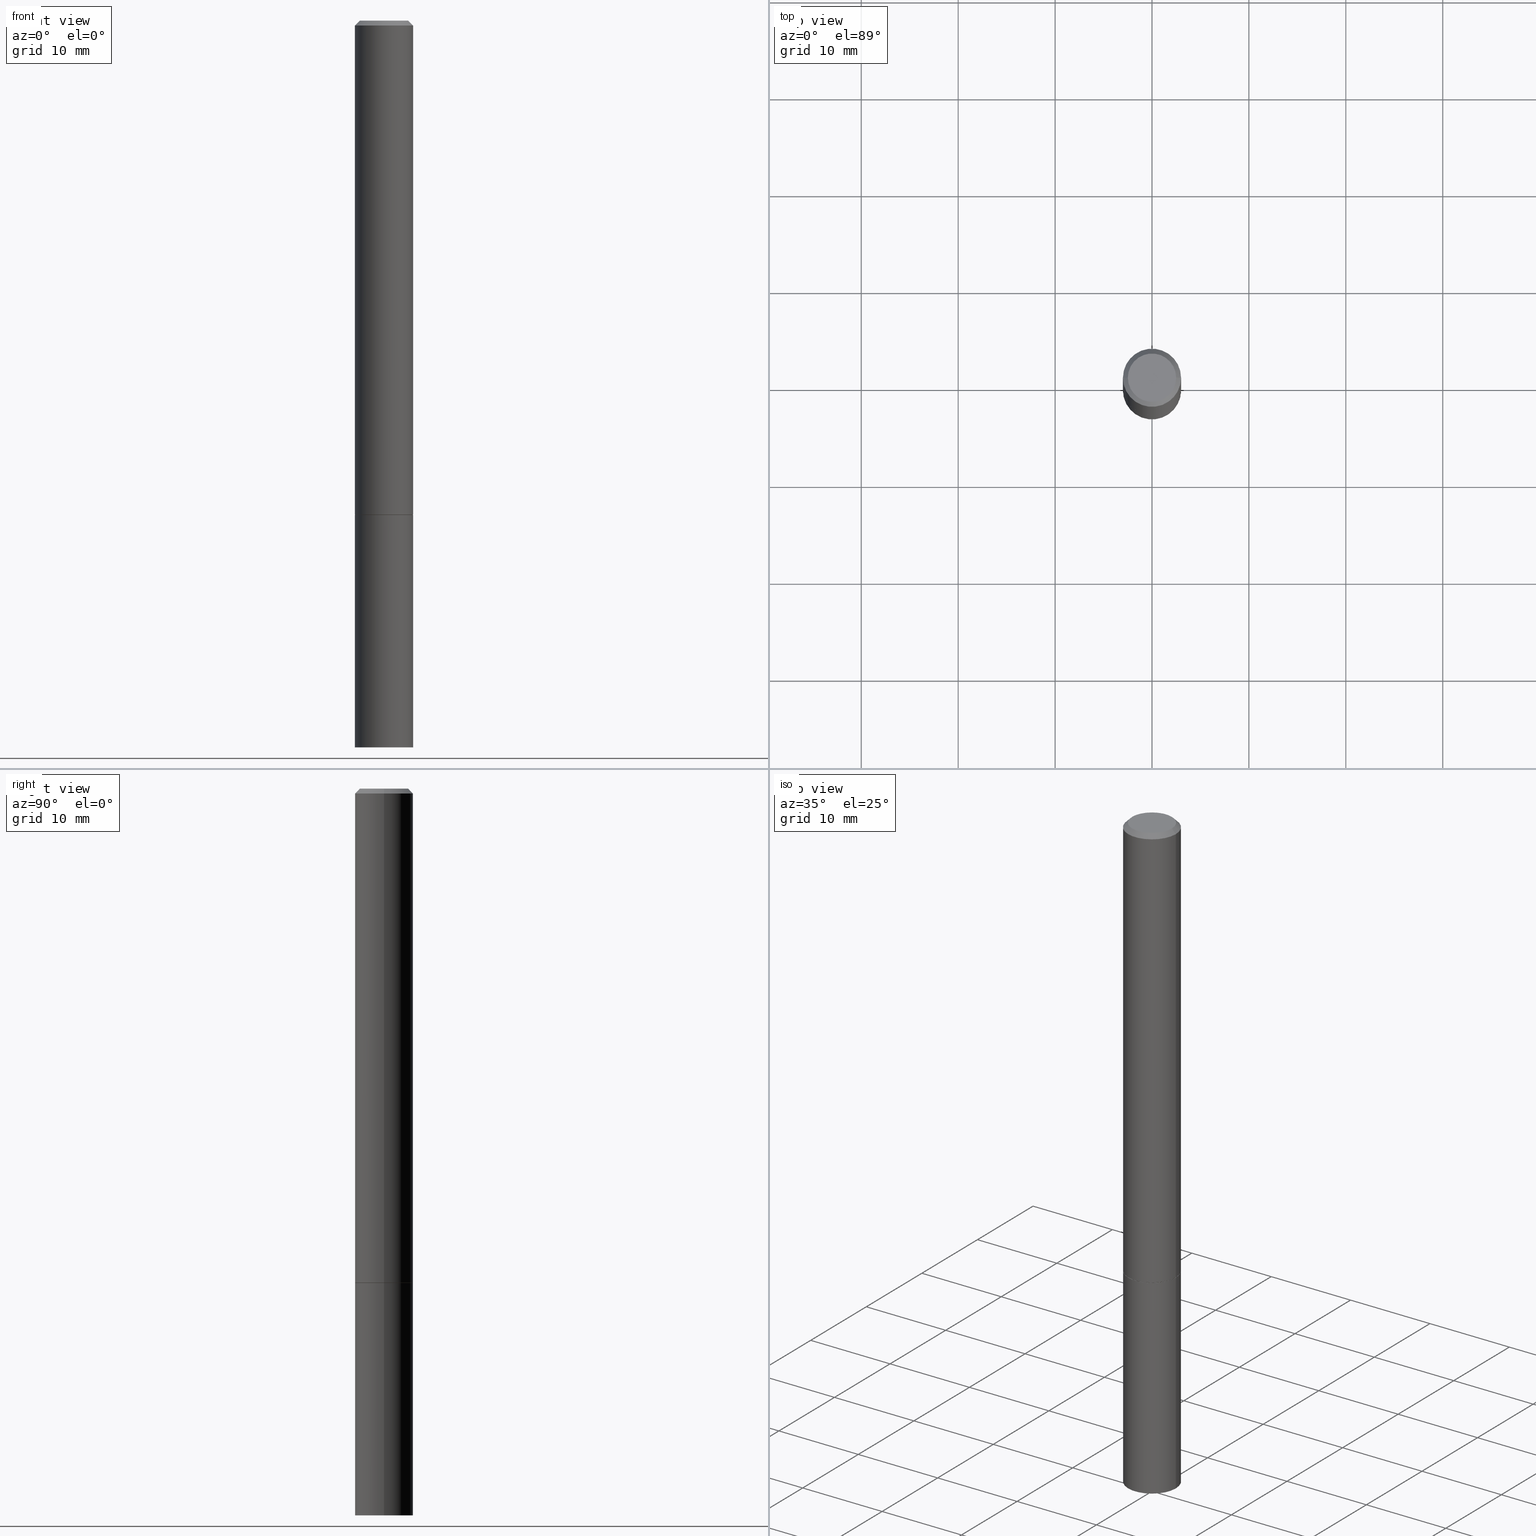
[diagram: canonical four-view strip — front | top / right | iso, engineering-drawing reading convention]
A machine part, canonical four-view strip (front | top / right | iso — engineering-drawing reading convention). The complete STEP part file that produces these views, byte-faithful:
ISO-10303-21;
HEADER;
FILE_DESCRIPTION (( 'STEP AP203' ),
    '1' );
FILE_NAME ('74332.STEP',
    '2024-02-29T08:38:22',
    ( '' ),
    ( '' ),
    'SwSTEP 2.0',
    'SolidWorks 2023',
    '' );
FILE_SCHEMA (( 'CONFIG_CONTROL_DESIGN' ));
ENDSEC;

DATA;
#1 = APPROVAL ( #225, 'UNSPECIFIED' ) ;
#2 = ORIENTED_EDGE ( 'NONE', *, *, #155, .T. ) ;
#3 = DIRECTION ( 'NONE',  ( -1.000000000000000000, 6.982962677686265922E-15, -4.876176775795935793E-29 ) ) ;
#4 = CARTESIAN_POINT ( 'NONE',  ( 6.850286386810212718E-16, 0.09809999999999979847, -3.467828318306122952E-16 ) ) ;
#5 = EDGE_LOOP ( 'NONE', ( #109, #27 ) ) ;
#6 = CIRCLE ( 'NONE', #207, 0.1180999999999999966 ) ;
#7 = AXIS2_PLACEMENT_3D ( 'NONE', #188, #130, #265 ) ;
#8 = DIRECTION ( 'NONE',  ( -2.445468806185136597E-29, 3.491481338843145583E-15, 1.000000000000000000 ) ) ;
#9 = DIRECTION ( 'NONE',  ( 1.000000000000000000, -6.982962677686266711E-15, 4.876176775795936353E-29 ) ) ;
#10 = CARTESIAN_POINT ( 'NONE',  ( 0.1180999999999998995, -8.246878922347473751E-16, 5.758764772214994835E-30 ) ) ;
#11 = UNCERTAINTY_MEASURE_WITH_UNIT (LENGTH_MEASURE( 1.000000000000000082E-05 ), #156, 'distance_accuracy_value', 'NONE');
#12 = AXIS2_PLACEMENT_3D ( 'NONE', #74, #151, #349 ) ;
#13 = LOCAL_TIME ( 3, 38, 22.00000000000000000, #314 ) ;
#14 = DIRECTION ( 'NONE',  ( -2.445468806185136597E-29, 3.491481338843145583E-15, 1.000000000000000000 ) ) ;
#15 = APPLICATION_CONTEXT ( 'configuration controlled 3d designs of mechanical parts and assemblies' ) ;
#16 = CARTESIAN_POINT ( 'NONE',  ( -0.1170999999999999958, -6.178499836688073733E-15, -2.007899999999999796 ) ) ;
#17 = FACE_OUTER_BOUND ( 'NONE', #5, .T. ) ;
#18 = FACE_OUTER_BOUND ( 'NONE', #196, .T. ) ;
#19 = ADVANCED_FACE ( 'NONE', ( #255 ), #293, .F. ) ;
#20 = APPLICATION_PROTOCOL_DEFINITION ( 'international standard', 'config_control_design', 1994, #15 ) ;
#21 = DIRECTION ( 'NONE',  ( 2.445468806185136597E-29, -3.491481338843145583E-15, -1.000000000000000000 ) ) ;
#22 = PRODUCT_DEFINITION_SHAPE ( 'NONE', 'NONE',  #233 ) ;
#23 = MANIFOLD_SOLID_BREP ( 'Body-Move/Copy2[2]', #82 ) ;
#24 = ORIENTED_EDGE ( 'NONE', *, *, #170, .T. ) ;
#25 = CIRCLE ( 'NONE', #351, 0.1170999999999999958 ) ;
#26 = FACE_OUTER_BOUND ( 'NONE', #106, .T. ) ;
#27 = ORIENTED_EDGE ( 'NONE', *, *, #150, .F. ) ;
#28 = ORIENTED_EDGE ( 'NONE', *, *, #324, .T. ) ;
#29 = ORIENTED_EDGE ( 'NONE', *, *, #221, .F. ) ;
#30 = APPROVAL_DATE_TIME ( #286, #1 ) ;
#31 = AXIS2_PLACEMENT_3D ( 'NONE', #329, #272, #157 ) ;
#32 = LOCAL_TIME ( 3, 38, 22.00000000000000000, #250 ) ;
#33 = ORIENTED_EDGE ( 'NONE', *, *, #66, .T. ) ;
#34 = LINE ( 'NONE', #147, #113 ) ;
#35 = MANIFOLD_SOLID_BREP ( 'Body-Move/Copy2[1]', #64 ) ;
#36 = CARTESIAN_POINT ( 'NONE',  ( 7.220980290903470182E-29, -1.030964609733603853E-14, -2.952799999999999869 ) ) ;
#37 = CC_DESIGN_PERSON_AND_ORGANIZATION_ASSIGNMENT ( #87, #220, ( #233 ) ) ;
#38 = APPROVAL_PERSON_ORGANIZATION ( #325, #92, #199 ) ;
#39 = DIRECTION ( 'NONE',  ( -2.445468806185136597E-29, 3.491481338843145583E-15, 1.000000000000000000 ) ) ;
#40 = LENGTH_MEASURE_WITH_UNIT ( LENGTH_MEASURE( 0.02539999999999999897 ), #67 );
#41 = CARTESIAN_POINT ( 'NONE',  ( 4.890937612370280165E-31, -6.982962677686301470E-17, -0.02000000000000003164 ) ) ;
#42 = EDGE_CURVE ( 'NONE', #365, #202, #124, .T. ) ;
#43 =( NAMED_UNIT ( * ) PLANE_ANGLE_UNIT ( ) SI_UNIT ( $, .RADIAN. ) );
#44 = CARTESIAN_POINT ( 'NONE',  ( -0.1180999999999999966, 8.391509709326782957E-16, -5.809262341591043784E-30 ) ) ;
#45 = DIRECTION ( 'NONE',  ( -1.000000000000000000, 6.982962677686266711E-15, 0.000000000000000000 ) ) ;
#46 = ADVANCED_FACE ( 'NONE', ( #63 ), #69, .T. ) ;
#47 = AXIS2_PLACEMENT_3D ( 'NONE', #105, #235, #271 ) ;
#48 = AXIS2_PLACEMENT_3D ( 'NONE', #132, #187, #45 ) ;
#49 = LINE ( 'NONE', #16, #161 ) ;
#50 = EDGE_LOOP ( 'NONE', ( #60, #89, #344, #168 ) ) ;
#51 = CALENDAR_DATE ( 2024, 29, 2 ) ;
#52 = AXIS2_PLACEMENT_3D ( 'NONE', #41, #268, #240 ) ;
#53 = AXIS2_PLACEMENT_3D ( 'NONE', #352, #103, #9 ) ;
#54 = PERSON_AND_ORGANIZATION ( #308, #136 ) ;
#55 = PLANE ( 'NONE',  #270 ) ;
#56 = DIMENSIONAL_EXPONENTS ( 1.000000000000000000, 0.000000000000000000, 0.000000000000000000, 0.000000000000000000, 0.000000000000000000, 0.000000000000000000, 0.000000000000000000 ) ;
#57 = VERTEX_POINT ( 'NONE', #290 ) ;
#58 = ORIENTED_EDGE ( 'NONE', *, *, #350, .T. ) ;
#59 = FACE_OUTER_BOUND ( 'NONE', #198, .T. ) ;
#60 = ORIENTED_EDGE ( 'NONE', *, *, #86, .T. ) ;
#61 = ORIENTED_EDGE ( 'NONE', *, *, #121, .T. ) ;
#62 = EDGE_CURVE ( 'NONE', #345, #90, #34, .T. ) ;
#63 = FACE_OUTER_BOUND ( 'NONE', #104, .T. ) ;
#64 = CLOSED_SHELL ( 'NONE', ( #183, #280, #100, #267 ) ) ;
#65 = CARTESIAN_POINT ( 'NONE',  ( -0.1180999999999999966, -7.820944767866917317E-15, -2.952799999999999869 ) ) ;
#66 = EDGE_CURVE ( 'NONE', #112, #345, #310, .T. ) ;
#67 =( LENGTH_UNIT ( ) NAMED_UNIT ( * ) SI_UNIT ( $, .METRE. ) );
#68 = APPLICATION_CONTEXT ( 'configuration controlled 3d designs of mechanical parts and assemblies' ) ;
#69 = CONICAL_SURFACE ( 'NONE', #301, 0.1170999999999999958, 0.7853981633974227439 ) ;
#70 = PRODUCT_DEFINITION_FORMATION_WITH_SPECIFIED_SOURCE ( 'ANY', '', #222, .NOT_KNOWN. ) ;
#71 = CARTESIAN_POINT ( 'NONE',  ( 0.1180999999999999966, -1.113433398957078679E-14, -2.952799999999999869 ) ) ;
#72 = DIRECTION ( 'NONE',  ( 0.7071067811865466846, -7.319954787623252890E-15, -0.7071067811865483499 ) ) ;
#73 = CC_DESIGN_PERSON_AND_ORGANIZATION_ASSIGNMENT ( #227, #83, ( #332 ) ) ;
#74 = CARTESIAN_POINT ( 'NONE',  ( 4.910256815939135309E-29, -7.010545380263150922E-15, -2.007899999999999796 ) ) ;
#75 = DIRECTION ( 'NONE',  ( -0.7071067811865294761, 7.493145998870289474E-15, 0.7071067811865655584 ) ) ;
#76 = AXIS2_PLACEMENT_3D ( 'NONE', #107, #39, #215 ) ;
#77 = AXIS2_PLACEMENT_3D ( 'NONE', #246, #252, #115 ) ;
#78 = PRODUCT_RELATED_PRODUCT_CATEGORY ( 'detail', '', ( #222 ) ) ;
#79 = FACE_OUTER_BOUND ( 'NONE', #50, .T. ) ;
#80 = CALENDAR_DATE ( 2024, 29, 2 ) ;
#81 = DATE_TIME_ROLE ( 'creation_date' ) ;
#82 = CLOSED_SHELL ( 'NONE', ( #94, #153, #194, #186, #326, #46, #152, #19 ) ) ;
#83 = PERSON_AND_ORGANIZATION_ROLE ( 'classification_officer' ) ;
#84 = FACE_OUTER_BOUND ( 'NONE', #180, .T. ) ;
#85 = FACE_OUTER_BOUND ( 'NONE', #143, .T. ) ;
#86 = EDGE_CURVE ( 'NONE', #345, #112, #317, .T. ) ;
#87 = PERSON_AND_ORGANIZATION ( #308, #136 ) ;
#88 = EDGE_CURVE ( 'NONE', #90, #176, #6, .T. ) ;
#89 = ORIENTED_EDGE ( 'NONE', *, *, #221, .T. ) ;
#90 = VERTEX_POINT ( 'NONE', #251 ) ;
#91 =( GEOMETRIC_REPRESENTATION_CONTEXT ( 3 ) GLOBAL_UNCERTAINTY_ASSIGNED_CONTEXT ( ( #11 ) ) GLOBAL_UNIT_ASSIGNED_CONTEXT ( ( #156, #43, #127 ) ) REPRESENTATION_CONTEXT ( 'NONE', 'WORKASPACE' ) );
#92 = APPROVAL ( #138, 'UNSPECIFIED' ) ;
#93 = ADVANCED_BREP_SHAPE_REPRESENTATION ( '74332', ( #35, #23, #7 ), #91 ) ;
#94 = ADVANCED_FACE ( 'NONE', ( #85 ), #230, .T. ) ;
#95 = ORIENTED_EDGE ( 'NONE', *, *, #287, .F. ) ;
#96 = ORIENTED_EDGE ( 'NONE', *, *, #66, .F. ) ;
#97 = CARTESIAN_POINT ( 'NONE',  ( -0.1180999999999997746, 7.548582654578835839E-16, -0.02000000000000003164 ) ) ;
#98 = CIRCLE ( 'NONE', #343, 0.1181000000000000105 ) ;
#99 = PERSON_AND_ORGANIZATION_ROLE ( 'design_owner' ) ;
#100 = ADVANCED_FACE ( 'NONE', ( #239 ), #296, .F. ) ;
#101 = CARTESIAN_POINT ( 'NONE',  ( 4.907811347132949706E-29, -7.007053898924307126E-15, -2.006899999999999462 ) ) ;
#102 = VECTOR ( 'NONE', #167, 39.37007874015748143 ) ;
#103 = DIRECTION ( 'NONE',  ( -2.445468806185136597E-29, 3.491481338843145583E-15, 1.000000000000000000 ) ) ;
#104 = EDGE_LOOP ( 'NONE', ( #316, #278, #362, #254 ) ) ;
#105 = CARTESIAN_POINT ( 'NONE',  ( 8.246878922347970734E-16, 0.1180999999999929745, -2.007900000000000240 ) ) ;
#106 = EDGE_LOOP ( 'NONE', ( #29, #33, #162, #146 ) ) ;
#107 = CARTESIAN_POINT ( 'NONE',  ( 4.910256815939135309E-29, -7.010545380263150922E-15, -2.007899999999999796 ) ) ;
#108 = CARTESIAN_POINT ( 'NONE',  ( 0.1170999999999999958, -7.828250309820211592E-15, -2.007899999999999796 ) ) ;
#109 = ORIENTED_EDGE ( 'NONE', *, *, #350, .F. ) ;
#110 = PERSON_AND_ORGANIZATION ( #308, #136 ) ;
#111 = DIRECTION ( 'NONE',  ( -2.445468806185136597E-29, 3.491481338843145583E-15, 1.000000000000000000 ) ) ;
#112 = VERTEX_POINT ( 'NONE', #65 ) ;
#113 = VECTOR ( 'NONE', #291, 39.37007874015748143 ) ;
#114 = PERSON_AND_ORGANIZATION_ROLE ( 'creator' ) ;
#115 = DIRECTION ( 'NONE',  ( 1.000000000000000000, -6.982962677686265133E-15, 0.000000000000000000 ) ) ;
#116 = ORIENTED_EDGE ( 'NONE', *, *, #164, .F. ) ;
#117 = ORIENTED_EDGE ( 'NONE', *, *, #263, .T. ) ;
#118 = CARTESIAN_POINT ( 'NONE',  ( 4.907811347132949706E-29, -7.007053898924307126E-15, -2.006899999999999462 ) ) ;
#119 = AXIS2_PLACEMENT_3D ( 'NONE', #330, #185, #182 ) ;
#120 = DIRECTION ( 'NONE',  ( 1.000000000000000000, -6.982962677686273021E-15, 0.000000000000000000 ) ) ;
#121 = EDGE_CURVE ( 'NONE', #335, #165, #144, .T. ) ;
#122 = CARTESIAN_POINT ( 'NONE',  ( 2.087702828670439639E-46, -2.980686340760894400E-32, -8.537024980200822558E-18 ) ) ;
#123 = EDGE_CURVE ( 'NONE', #165, #335, #210, .T. ) ;
#124 = CIRCLE ( 'NONE', #269, 0.1181000000000000105 ) ;
#125 = VECTOR ( 'NONE', #364, 39.37007874015748143 ) ;
#126 = CYLINDRICAL_SURFACE ( 'NONE', #311, 0.1180999999999998995 ) ;
#127 =( NAMED_UNIT ( * ) SI_UNIT ( $, .STERADIAN. ) SOLID_ANGLE_UNIT ( ) );
#128 = DIRECTION ( 'NONE',  ( 1.000000000000000000, -6.982962677686267499E-15, 4.876195163481342132E-29 ) ) ;
#129 = EDGE_CURVE ( 'NONE', #137, #165, #206, .T. ) ;
#130 = DIRECTION ( 'NONE',  ( 0.000000000000000000, 0.000000000000000000, 1.000000000000000000 ) ) ;
#131 = CARTESIAN_POINT ( 'NONE',  ( 0.09809999999999979847, -7.765346469475326737E-16, -8.537024980195711910E-18 ) ) ;
#132 = CARTESIAN_POINT ( 'NONE',  ( 4.890937612370280165E-31, -6.982962677686301470E-17, -0.02000000000000003164 ) ) ;
#133 = CC_DESIGN_PERSON_AND_ORGANIZATION_ASSIGNMENT ( #171, #114, ( #70 ) ) ;
#134 = PERSON_AND_ORGANIZATION ( #308, #136 ) ;
#135 = DIRECTION ( 'NONE',  ( -1.000000000000000000, 6.982962677686266711E-15, 0.000000000000000000 ) ) ;
#136 = ORGANIZATION ( 'UNSPECIFIED', 'UNSPECIFIED', '' ) ;
#137 = VERTEX_POINT ( 'NONE', #244 ) ;
#138 = APPROVAL_STATUS ( 'not_yet_approved' ) ;
#139 = CARTESIAN_POINT ( 'NONE',  ( 0.000000000000000000, 0.000000000000000000, 0.000000000000000000 ) ) ;
#140 = CC_DESIGN_DATE_AND_TIME_ASSIGNMENT ( #175, #81, ( #233 ) ) ;
#141 = DIRECTION ( 'NONE',  ( 1.000000000000000000, -6.982962677686265133E-15, 0.000000000000000000 ) ) ;
#142 = APPROVAL_ROLE ( '' ) ;
#143 = EDGE_LOOP ( 'NONE', ( #58, #2, #219, #319 ) ) ;
#144 = CIRCLE ( 'NONE', #31, 0.1180999999999997746 ) ;
#145 = CC_DESIGN_APPROVAL ( #1, ( #332 ) ) ;
#146 = ORIENTED_EDGE ( 'NONE', *, *, #258, .F. ) ;
#147 = CARTESIAN_POINT ( 'NONE',  ( 0.1180999999999999966, -8.246878922347480654E-16, 5.758764772215000440E-30 ) ) ;
#148 = DIRECTION ( 'NONE',  ( 1.000000000000000000, -6.982962677686273021E-15, 0.000000000000000000 ) ) ;
#149 = CC_DESIGN_SECURITY_CLASSIFICATION ( #332, ( #70 ) ) ;
#150 = EDGE_CURVE ( 'NONE', #313, #57, #236, .T. ) ;
#151 = DIRECTION ( 'NONE',  ( -2.438088387897960049E-29, 3.491481338843145188E-15, 1.000000000000000000 ) ) ;
#152 = ADVANCED_FACE ( 'NONE', ( #17 ), #300, .F. ) ;
#153 = ADVANCED_FACE ( 'NONE', ( #354 ), #357, .T. ) ;
#154 = CIRCLE ( 'NONE', #195, 0.09809999999999979847 ) ;
#155 = EDGE_CURVE ( 'NONE', #313, #365, #49, .T. ) ;
#156 =( CONVERSION_BASED_UNIT ( 'INCH', #40 ) LENGTH_UNIT ( ) NAMED_UNIT ( #56 ) );
#157 = DIRECTION ( 'NONE',  ( 1.000000000000000000, -6.982962677686266711E-15, 0.000000000000000000 ) ) ;
#158 = DIRECTION ( 'NONE',  ( -2.445468806185136877E-29, 3.491481338843145188E-15, 1.000000000000000000 ) ) ;
#159 = CARTESIAN_POINT ( 'NONE',  ( 0.1180999999999997746, -8.800544403136792597E-16, -0.02000000000000003164 ) ) ;
#160 = CARTESIAN_POINT ( 'NONE',  ( 4.910256815939135309E-29, -7.010545380263150922E-15, -2.007899999999999796 ) ) ;
#161 = VECTOR ( 'NONE', #75, 39.37007874015748143 ) ;
#162 = ORIENTED_EDGE ( 'NONE', *, *, #62, .T. ) ;
#163 = CARTESIAN_POINT ( 'NONE',  ( 4.890937612370280165E-31, -6.982962677686301470E-17, -0.02000000000000003164 ) ) ;
#164 = EDGE_CURVE ( 'NONE', #231, #335, #334, .T. ) ;
#165 = VERTEX_POINT ( 'NONE', #189 ) ;
#166 = APPROVAL_ROLE ( '' ) ;
#167 = DIRECTION ( 'NONE',  ( -2.445468806185136877E-29, 3.491481338843145188E-15, 1.000000000000000000 ) ) ;
#168 = ORIENTED_EDGE ( 'NONE', *, *, #62, .F. ) ;
#169 = AXIS2_PLACEMENT_3D ( 'NONE', #163, #21, #135 ) ;
#170 = EDGE_CURVE ( 'NONE', #231, #137, #253, .T. ) ;
#171 = PERSON_AND_ORGANIZATION ( #308, #136 ) ;
#172 = DATE_AND_TIME ( #245, #277 ) ;
#173 = CARTESIAN_POINT ( 'NONE',  ( 8.246878922348201475E-16, 0.1180999999999896855, -2.952800000000000313 ) ) ;
#174 = ORIENTED_EDGE ( 'NONE', *, *, #258, .T. ) ;
#175 = DATE_AND_TIME ( #192, #13 ) ;
#176 = VERTEX_POINT ( 'NONE', #266 ) ;
#177 = APPROVAL_PERSON_ORGANIZATION ( #54, #302, #142 ) ;
#178 = DIRECTION ( 'NONE',  ( 2.438088387897960049E-29, -3.491481338843145188E-15, -1.000000000000000000 ) ) ;
#179 = DIRECTION ( 'NONE',  ( -2.445468806185136597E-29, 3.491481338843145583E-15, 1.000000000000000000 ) ) ;
#180 = EDGE_LOOP ( 'NONE', ( #223, #96 ) ) ;
#181 = APPROVAL_PERSON_ORGANIZATION ( #110, #1, #166 ) ;
#182 = DIRECTION ( 'NONE',  ( 1.000000000000000000, -6.982962677686266711E-15, 4.876176775795935232E-29 ) ) ;
#183 = ADVANCED_FACE ( 'NONE', ( #79 ), #303, .T. ) ;
#184 = DIRECTION ( 'NONE',  ( -2.445468806185136597E-29, 3.491481338843145583E-15, 1.000000000000000000 ) ) ;
#185 = DIRECTION ( 'NONE',  ( -2.445468806185136597E-29, 3.491481338843145583E-15, 1.000000000000000000 ) ) ;
#186 = ADVANCED_FACE ( 'NONE', ( #213 ), #333, .T. ) ;
#187 = DIRECTION ( 'NONE',  ( 2.445468806185136597E-29, -3.491481338843145583E-15, -1.000000000000000000 ) ) ;
#188 = CARTESIAN_POINT ( 'NONE',  ( 0.000000000000000000, 0.000000000000000000, 0.000000000000000000 ) ) ;
#189 = CARTESIAN_POINT ( 'NONE',  ( -0.1180999999999997746, 7.548582654578835839E-16, -0.02000000000000003164 ) ) ;
#190 = ORIENTED_EDGE ( 'NONE', *, *, #129, .F. ) ;
#191 = DIRECTION ( 'NONE',  ( 1.000000000000000000, -6.982962677686264344E-15, 0.000000000000000000 ) ) ;
#192 = CALENDAR_DATE ( 2024, 29, 2 ) ;
#193 = LINE ( 'NONE', #108, #125 ) ;
#194 = ADVANCED_FACE ( 'NONE', ( #18 ), #264, .T. ) ;
#195 = AXIS2_PLACEMENT_3D ( 'NONE', #341, #307, #248 ) ;
#196 = EDGE_LOOP ( 'NONE', ( #249, #331, #61, #190 ) ) ;
#197 = CALENDAR_DATE ( 2024, 29, 2 ) ;
#198 = EDGE_LOOP ( 'NONE', ( #95, #228, #28, #304 ) ) ;
#199 = APPROVAL_ROLE ( '' ) ;
#200 = CC_DESIGN_PERSON_AND_ORGANIZATION_ASSIGNMENT ( #134, #99, ( #222 ) ) ;
#201 = ORIENTED_EDGE ( 'NONE', *, *, #216, .T. ) ;
#202 = VERTEX_POINT ( 'NONE', #346 ) ;
#203 = VECTOR ( 'NONE', #72, 39.37007874015748143 ) ;
#204 = DIRECTION ( 'NONE',  ( -2.445468806185136597E-29, 3.491481338843145583E-15, 1.000000000000000000 ) ) ;
#205 = ORIENTED_EDGE ( 'NONE', *, *, #123, .T. ) ;
#206 = LINE ( 'NONE', #97, #259 ) ;
#207 = AXIS2_PLACEMENT_3D ( 'NONE', #337, #321, #141 ) ;
#208 = AXIS2_PLACEMENT_3D ( 'NONE', #139, #111, #361 ) ;
#209 = APPLICATION_PROTOCOL_DEFINITION ( 'international standard', 'config_control_design', 1994, #68 ) ;
#210 = CIRCLE ( 'NONE', #52, 0.1180999999999997746 ) ;
#211 = CC_DESIGN_APPROVAL ( #302, ( #70 ) ) ;
#212 = DIRECTION ( 'NONE',  ( -2.445468806185136597E-29, 3.491481338843145583E-15, 1.000000000000000000 ) ) ;
#213 = FACE_OUTER_BOUND ( 'NONE', #281, .T. ) ;
#214 = CC_DESIGN_DATE_AND_TIME_ASSIGNMENT ( #338, #363, ( #332 ) ) ;
#215 = DIRECTION ( 'NONE',  ( 1.000000000000000000, -6.982962677686264344E-15, 0.000000000000000000 ) ) ;
#216 = EDGE_CURVE ( 'NONE', #202, #365, #98, .T. ) ;
#217 = DIRECTION ( 'NONE',  ( -2.445468806185136597E-29, 3.491481338843145583E-15, 1.000000000000000000 ) ) ;
#218 = VECTOR ( 'NONE', #295, 39.37007874015748143 ) ;
#219 = ORIENTED_EDGE ( 'NONE', *, *, #216, .F. ) ;
#220 = PERSON_AND_ORGANIZATION_ROLE ( 'creator' ) ;
#221 = EDGE_CURVE ( 'NONE', #112, #176, #298, .T. ) ;
#222 = PRODUCT ( '74332', '74332', '', ( #243 ) ) ;
#223 = ORIENTED_EDGE ( 'NONE', *, *, #86, .F. ) ;
#224 = COORDINATED_UNIVERSAL_TIME_OFFSET ( 5, 0, .BEHIND. ) ;
#225 = APPROVAL_STATUS ( 'not_yet_approved' ) ;
#226 = ORIENTED_EDGE ( 'NONE', *, *, #324, .F. ) ;
#227 = PERSON_AND_ORGANIZATION ( #308, #136 ) ;
#228 = ORIENTED_EDGE ( 'NONE', *, *, #42, .T. ) ;
#229 = DIRECTION ( 'NONE',  ( -1.000000000000000000, 6.982962677686265922E-15, -4.876176775795935793E-29 ) ) ;
#230 = CONICAL_SURFACE ( 'NONE', #276, 0.1170999999999999958, 0.7853981633974227439 ) ;
#231 = VERTEX_POINT ( 'NONE', #131 ) ;
#232 = LOCAL_TIME ( 3, 38, 22.00000000000000000, #224 ) ;
#233 = PRODUCT_DEFINITION ( 'UNKNOWN', '', #70, #289 ) ;
#234 = CARTESIAN_POINT ( 'NONE',  ( 4.910256815939135309E-29, -7.010545380263150922E-15, -2.007899999999999796 ) ) ;
#235 = DIRECTION ( 'NONE',  ( 2.438088387897960049E-29, -3.491481338843145188E-15, -1.000000000000000000 ) ) ;
#236 = CIRCLE ( 'NONE', #76, 0.1170999999999999958 ) ;
#237 = CARTESIAN_POINT ( 'NONE',  ( 4.910256815939135309E-29, -7.010545380263150922E-15, -2.007899999999999796 ) ) ;
#238 = CARTESIAN_POINT ( 'NONE',  ( 0.000000000000000000, 0.000000000000000000, 0.000000000000000000 ) ) ;
#239 = FACE_OUTER_BOUND ( 'NONE', #358, .T. ) ;
#240 = DIRECTION ( 'NONE',  ( 1.000000000000000000, -6.982962677686266711E-15, 0.000000000000000000 ) ) ;
#241 = ORIENTED_EDGE ( 'NONE', *, *, #88, .T. ) ;
#242 = DIRECTION ( 'NONE',  ( -2.445468806185136597E-29, 3.491481338843145583E-15, 1.000000000000000000 ) ) ;
#243 = MECHANICAL_CONTEXT ( 'NONE', #15, 'mechanical' ) ;
#244 = CARTESIAN_POINT ( 'NONE',  ( -0.09809999999999979847, 7.199434520694525264E-16, -8.537024980205735990E-18 ) ) ;
#245 = CALENDAR_DATE ( 2024, 29, 2 ) ;
#246 = CARTESIAN_POINT ( 'NONE',  ( 4.910256815939135309E-29, -7.010545380263150922E-15, -2.007899999999999796 ) ) ;
#247 = VECTOR ( 'NONE', #158, 39.37007874015748143 ) ;
#248 = DIRECTION ( 'NONE',  ( 1.000000000000000000, -6.982962677686267499E-15, 4.876195163481342132E-29 ) ) ;
#249 = ORIENTED_EDGE ( 'NONE', *, *, #170, .F. ) ;
#250 = COORDINATED_UNIVERSAL_TIME_OFFSET ( 5, 0, .BEHIND. ) ;
#251 = CARTESIAN_POINT ( 'NONE',  ( 0.1180999999999999966, -7.835233272497899184E-15, -2.007899999999999796 ) ) ;
#252 = DIRECTION ( 'NONE',  ( -2.445468806185136597E-29, 3.491481338843145583E-15, 1.000000000000000000 ) ) ;
#253 = CIRCLE ( 'NONE', #318, 0.09809999999999979847 ) ;
#254 = ORIENTED_EDGE ( 'NONE', *, *, #42, .F. ) ;
#255 = FACE_OUTER_BOUND ( 'NONE', #353, .T. ) ;
#256 = DIRECTION ( 'NONE',  ( -2.445468806185136597E-29, 3.491481338843145583E-15, 1.000000000000000000 ) ) ;
#257 = EDGE_CURVE ( 'NONE', #57, #202, #193, .T. ) ;
#258 = EDGE_CURVE ( 'NONE', #176, #90, #261, .T. ) ;
#259 = VECTOR ( 'NONE', #323, 39.37007874015748143 ) ;
#260 = CARTESIAN_POINT ( 'NONE',  ( 7.220980290903470182E-29, -1.030964609733603853E-14, -2.952799999999999869 ) ) ;
#261 = CIRCLE ( 'NONE', #77, 0.1180999999999999966 ) ;
#262 = CARTESIAN_POINT ( 'NONE',  ( 0.1180999999999997746, -8.800544403136792597E-16, -0.02000000000000003164 ) ) ;
#263 = EDGE_CURVE ( 'NONE', #137, #231, #154, .T. ) ;
#264 = CONICAL_SURFACE ( 'NONE', #169, 0.1180999999999997746, 0.7853981633974471688 ) ;
#265 = DIRECTION ( 'NONE',  ( 1.000000000000000000, 0.000000000000000000, 0.000000000000000000 ) ) ;
#266 = CARTESIAN_POINT ( 'NONE',  ( -0.1180999999999999966, -7.820944767866917317E-15, -2.007899999999999796 ) ) ;
#267 = ADVANCED_FACE ( 'NONE', ( #26 ), #336, .T. ) ;
#268 = DIRECTION ( 'NONE',  ( -2.445468806185136597E-29, 3.491481338843145583E-15, 1.000000000000000000 ) ) ;
#269 = AXIS2_PLACEMENT_3D ( 'NONE', #118, #204, #320 ) ;
#270 = AXIS2_PLACEMENT_3D ( 'NONE', #173, #339, #3 ) ;
#271 = DIRECTION ( 'NONE',  ( -1.000000000000000000, 6.982962677686265922E-15, -4.876176775795935793E-29 ) ) ;
#272 = DIRECTION ( 'NONE',  ( -2.445468806185136597E-29, 3.491481338843145583E-15, 1.000000000000000000 ) ) ;
#273 = COORDINATED_UNIVERSAL_TIME_OFFSET ( 5, 0, .BEHIND. ) ;
#274 = CARTESIAN_POINT ( 'NONE',  ( -0.1170999999999999958, -6.173201382339850542E-15, -2.007899999999999796 ) ) ;
#275 = ORIENTED_EDGE ( 'NONE', *, *, #287, .T. ) ;
#276 = AXIS2_PLACEMENT_3D ( 'NONE', #160, #242, #191 ) ;
#277 = LOCAL_TIME ( 3, 38, 22.00000000000000000, #366 ) ;
#278 = ORIENTED_EDGE ( 'NONE', *, *, #150, .T. ) ;
#279 = PERSON_AND_ORGANIZATION_ROLE ( 'design_supplier' ) ;
#280 = ADVANCED_FACE ( 'NONE', ( #84 ), #55, .T. ) ;
#281 = EDGE_LOOP ( 'NONE', ( #116, #285, #355, #205 ) ) ;
#282 = APPROVAL_DATE_TIME ( #172, #302 ) ;
#283 = CC_DESIGN_PERSON_AND_ORGANIZATION_ASSIGNMENT ( #306, #279, ( #70 ) ) ;
#284 = LINE ( 'NONE', #315, #102 ) ;
#285 = ORIENTED_EDGE ( 'NONE', *, *, #263, .F. ) ;
#286 = DATE_AND_TIME ( #197, #294 ) ;
#287 = EDGE_CURVE ( 'NONE', #365, #165, #284, .T. ) ;
#288 = ORIENTED_EDGE ( 'NONE', *, *, #121, .F. ) ;
#289 = DESIGN_CONTEXT ( 'detailed design', #68, 'design' ) ;
#290 = CARTESIAN_POINT ( 'NONE',  ( 0.1170999999999999958, -7.828250309820211592E-15, -2.007899999999999796 ) ) ;
#291 = DIRECTION ( 'NONE',  ( -2.445468806185136877E-29, 3.491481338843145188E-15, 1.000000000000000000 ) ) ;
#292 = LINE ( 'NONE', #10, #218 ) ;
#293 = PLANE ( 'NONE',  #347 ) ;
#294 = LOCAL_TIME ( 3, 38, 22.00000000000000000, #273 ) ;
#295 = DIRECTION ( 'NONE',  ( -2.445468806185136877E-29, 3.491481338843145188E-15, 1.000000000000000000 ) ) ;
#296 = PLANE ( 'NONE',  #47 ) ;
#297 = DIRECTION ( 'NONE',  ( 1.000000000000000000, -6.982962677686264344E-15, 0.000000000000000000 ) ) ;
#298 = LINE ( 'NONE', #44, #247 ) ;
#299 = DIRECTION ( 'NONE',  ( 1.000000000000000000, -6.982962677686266711E-15, 4.876176775795935232E-29 ) ) ;
#300 = PLANE ( 'NONE',  #12 ) ;
#301 = AXIS2_PLACEMENT_3D ( 'NONE', #234, #179, #342 ) ;
#302 = APPROVAL ( #309, 'UNSPECIFIED' ) ;
#303 = CYLINDRICAL_SURFACE ( 'NONE', #53, 0.1180999999999999966 ) ;
#304 = ORIENTED_EDGE ( 'NONE', *, *, #123, .F. ) ;
#305 = DATE_AND_TIME ( #80, #232 ) ;
#306 = PERSON_AND_ORGANIZATION ( #308, #136 ) ;
#307 = DIRECTION ( 'NONE',  ( -2.445468806185136597E-29, 3.491481338843145583E-15, 1.000000000000000000 ) ) ;
#308 = PERSON ( 'UNSPECIFIED', 'UNSPECIFIED', 'UNSPECIFIED', ('UNSPECIFIED'), ('UNSPECIFIED'), ('UNSPECIFIED') ) ;
#309 = APPROVAL_STATUS ( 'not_yet_approved' ) ;
#310 = CIRCLE ( 'NONE', #322, 0.1180999999999999966 ) ;
#311 = AXIS2_PLACEMENT_3D ( 'NONE', #238, #14, #299 ) ;
#312 = APPROVAL_DATE_TIME ( #305, #92 ) ;
#313 = VERTEX_POINT ( 'NONE', #274 ) ;
#314 = COORDINATED_UNIVERSAL_TIME_OFFSET ( 5, 0, .BEHIND. ) ;
#315 = CARTESIAN_POINT ( 'NONE',  ( -0.1180999999999998995, 8.391509709326776054E-16, -5.809262341591038879E-30 ) ) ;
#316 = ORIENTED_EDGE ( 'NONE', *, *, #155, .F. ) ;
#317 = CIRCLE ( 'NONE', #327, 0.1180999999999999966 ) ;
#318 = AXIS2_PLACEMENT_3D ( 'NONE', #122, #217, #128 ) ;
#319 = ORIENTED_EDGE ( 'NONE', *, *, #257, .F. ) ;
#320 = DIRECTION ( 'NONE',  ( 1.000000000000000000, -6.982962677686264344E-15, 0.000000000000000000 ) ) ;
#321 = DIRECTION ( 'NONE',  ( -2.445468806185136597E-29, 3.491481338843145583E-15, 1.000000000000000000 ) ) ;
#322 = AXIS2_PLACEMENT_3D ( 'NONE', #36, #256, #148 ) ;
#323 = DIRECTION ( 'NONE',  ( -0.7071067811865466846, 2.468850131082247989E-15, -0.7071067811865483499 ) ) ;
#324 = EDGE_CURVE ( 'NONE', #202, #335, #292, .T. ) ;
#325 = PERSON_AND_ORGANIZATION ( #308, #136 ) ;
#326 = ADVANCED_FACE ( 'NONE', ( #59 ), #126, .T. ) ;
#327 = AXIS2_PLACEMENT_3D ( 'NONE', #260, #8, #120 ) ;
#328 = DIRECTION ( 'NONE',  ( 1.000000000000000000, -6.982962677686264344E-15, 0.000000000000000000 ) ) ;
#329 = CARTESIAN_POINT ( 'NONE',  ( 4.890937612370280165E-31, -6.982962677686301470E-17, -0.02000000000000003164 ) ) ;
#330 = CARTESIAN_POINT ( 'NONE',  ( 0.000000000000000000, 0.000000000000000000, 0.000000000000000000 ) ) ;
#331 = ORIENTED_EDGE ( 'NONE', *, *, #164, .T. ) ;
#332 = SECURITY_CLASSIFICATION ( '', '', #360 ) ;
#333 = CONICAL_SURFACE ( 'NONE', #48, 0.1180999999999997746, 0.7853981633974471688 ) ;
#334 = LINE ( 'NONE', #262, #203 ) ;
#335 = VERTEX_POINT ( 'NONE', #159 ) ;
#336 = CYLINDRICAL_SURFACE ( 'NONE', #208, 0.1180999999999999966 ) ;
#337 = CARTESIAN_POINT ( 'NONE',  ( 4.910256815939135309E-29, -7.010545380263150922E-15, -2.007899999999999796 ) ) ;
#338 = DATE_AND_TIME ( #51, #32 ) ;
#339 = DIRECTION ( 'NONE',  ( 2.438088387897960049E-29, -3.491481338843145188E-15, -1.000000000000000000 ) ) ;
#340 = EDGE_LOOP ( 'NONE', ( #201, #275, #288, #226 ) ) ;
#341 = CARTESIAN_POINT ( 'NONE',  ( 2.087702828670439639E-46, -2.980686340760894400E-32, -8.537024980200822558E-18 ) ) ;
#342 = DIRECTION ( 'NONE',  ( 1.000000000000000000, -6.982962677686264344E-15, 0.000000000000000000 ) ) ;
#343 = AXIS2_PLACEMENT_3D ( 'NONE', #101, #212, #328 ) ;
#344 = ORIENTED_EDGE ( 'NONE', *, *, #88, .F. ) ;
#345 = VERTEX_POINT ( 'NONE', #71 ) ;
#346 = CARTESIAN_POINT ( 'NONE',  ( 0.1181000000000000105, -7.831741791159054599E-15, -2.006899999999999462 ) ) ;
#347 = AXIS2_PLACEMENT_3D ( 'NONE', #4, #178, #229 ) ;
#348 = CARTESIAN_POINT ( 'NONE',  ( -0.1181000000000000383, -2.699290791917902676E-15, -2.006899999999999462 ) ) ;
#349 = DIRECTION ( 'NONE',  ( 1.000000000000000000, -6.982962677686265922E-15, 4.876176775795935793E-29 ) ) ;
#350 = EDGE_CURVE ( 'NONE', #57, #313, #25, .T. ) ;
#351 = AXIS2_PLACEMENT_3D ( 'NONE', #237, #184, #297 ) ;
#352 = CARTESIAN_POINT ( 'NONE',  ( 0.000000000000000000, 0.000000000000000000, 0.000000000000000000 ) ) ;
#353 = EDGE_LOOP ( 'NONE', ( #117, #24 ) ) ;
#354 = FACE_OUTER_BOUND ( 'NONE', #340, .T. ) ;
#355 = ORIENTED_EDGE ( 'NONE', *, *, #129, .T. ) ;
#356 = SHAPE_DEFINITION_REPRESENTATION ( #22, #93 ) ;
#357 = CYLINDRICAL_SURFACE ( 'NONE', #119, 0.1180999999999998995 ) ;
#358 = EDGE_LOOP ( 'NONE', ( #241, #174 ) ) ;
#359 = CC_DESIGN_APPROVAL ( #92, ( #233 ) ) ;
#360 = SECURITY_CLASSIFICATION_LEVEL ( 'unclassified' ) ;
#361 = DIRECTION ( 'NONE',  ( 1.000000000000000000, -6.982962677686266711E-15, 4.876176775795936353E-29 ) ) ;
#362 = ORIENTED_EDGE ( 'NONE', *, *, #257, .T. ) ;
#363 = DATE_TIME_ROLE ( 'classification_date' ) ;
#364 = DIRECTION ( 'NONE',  ( 0.7071067811865294761, -2.468850131082068128E-15, 0.7071067811865655584 ) ) ;
#365 = VERTEX_POINT ( 'NONE', #348 ) ;
#366 = COORDINATED_UNIVERSAL_TIME_OFFSET ( 5, 0, .BEHIND. ) ;
ENDSEC;
END-ISO-10303-21;
